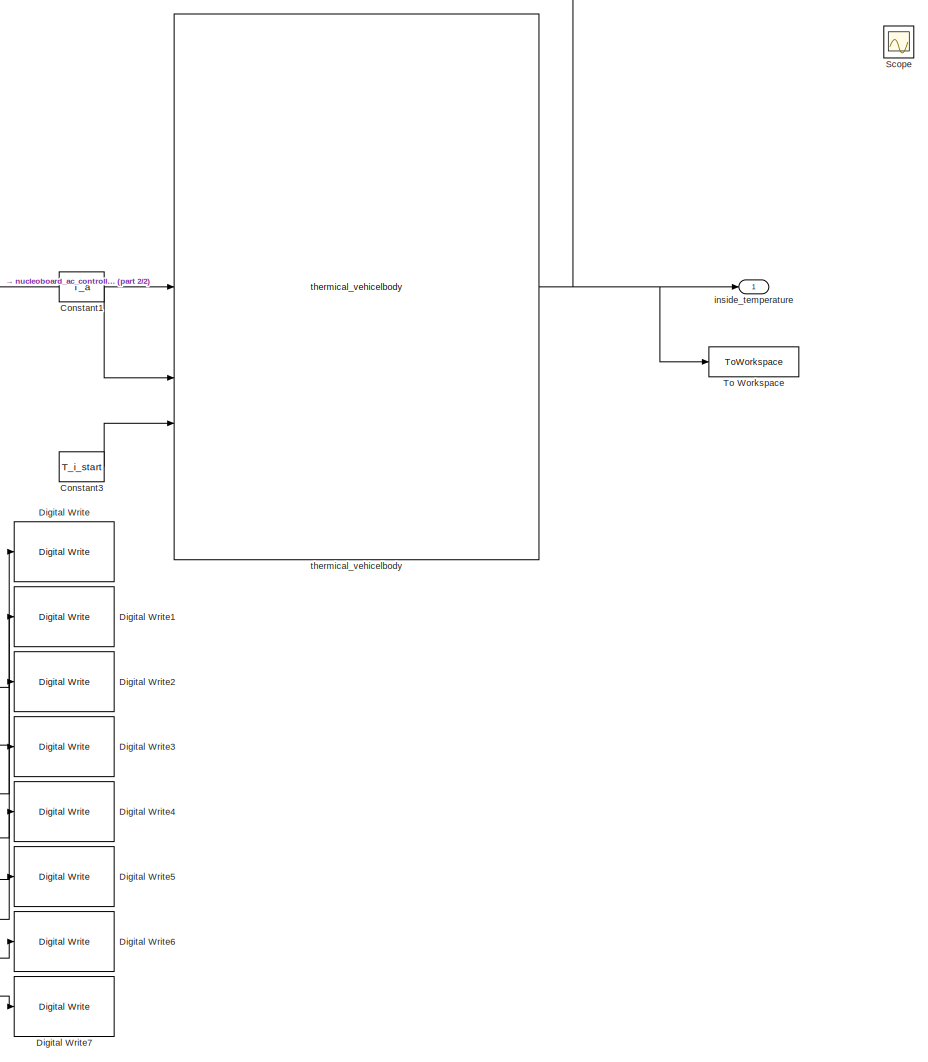
[diagram: root canvas - part 1/2, right side, full height]
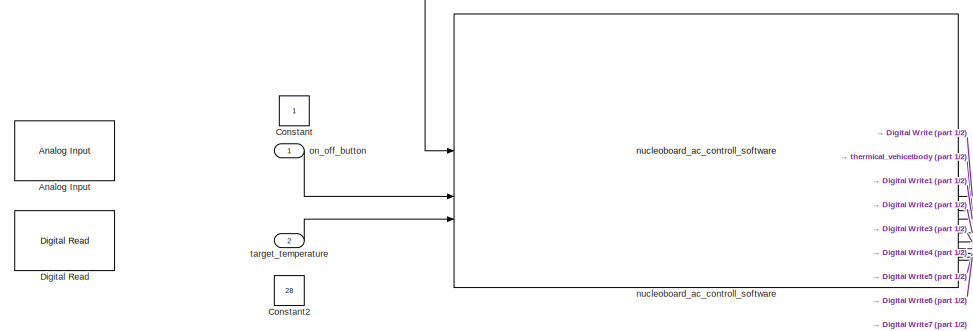
[diagram: root canvas - part 2/2, top left region]
MODEL slx_92fb39175ac7
KIND model
CONFIG AbsTol = auto
CONFIG EnableMultiTasking = off
CONFIG FixedStep = auto
CONFIG MaxStep = auto
CONFIG MinStep = auto
CONFIG RelTol = 1e-3
CONFIG SampleTimeConstraint = Unconstrained
CONFIG SolverName = ode45
CONFIG StartTime = 0.0
CONFIG StopTime = 40000
BLOCK [Reference] Analog Input  REF=mbedblockslib/Analog Input
  Commented = on
  LibrarySourceBlock = stmnucleorootlib/Common/Analog Input
  SourceBlock = mbedblockslib/Analog Input
  SourceType = mbed.AnalogInput
BLOCK [Constant] Constant
  Commented = on
  OutDataTypeStr = boolean
BLOCK [Constant] Constant1
  Value = T_a
BLOCK [Constant] Constant2
  Commented = on
  OutDataTypeStr = uint16
  Value = 28
BLOCK [Constant] Constant3
  Value = T_i_start
BLOCK [Reference] Digital Read  REF=mbedblockslib/Digital Read
  Commented = on
  LibrarySourceBlock = stmnucleorootlib/Common/Digital Read
  SourceBlock = mbedblockslib/Digital Read
  SourceType = mbed.DigitalRead
BLOCK [Reference] Digital Write  REF=mbedblockslib/Digital Write
  LibrarySourceBlock = stmnucleorootlib/Common/Digital Write
  SourceBlock = mbedblockslib/Digital Write
  SourceType = mbed.DigitalWrite
BLOCK [Reference] Digital Write1  REF=mbedblockslib/Digital Write
  LibrarySourceBlock = stmnucleorootlib/Common/Digital Write
  SourceBlock = mbedblockslib/Digital Write
  SourceType = mbed.DigitalWrite
BLOCK [Reference] Digital Write2  REF=mbedblockslib/Digital Write
  LibrarySourceBlock = stmnucleorootlib/Common/Digital Write
  SourceBlock = mbedblockslib/Digital Write
  SourceType = mbed.DigitalWrite
BLOCK [Reference] Digital Write3  REF=mbedblockslib/Digital Write
  LibrarySourceBlock = stmnucleorootlib/Common/Digital Write
  SourceBlock = mbedblockslib/Digital Write
  SourceType = mbed.DigitalWrite
BLOCK [Reference] Digital Write4  REF=mbedblockslib/Digital Write
  LibrarySourceBlock = stmnucleorootlib/Common/Digital Write
  SourceBlock = mbedblockslib/Digital Write
  SourceType = mbed.DigitalWrite
BLOCK [Reference] Digital Write5  REF=mbedblockslib/Digital Write
  LibrarySourceBlock = stmnucleorootlib/Common/Digital Write
  SourceBlock = mbedblockslib/Digital Write
  SourceType = mbed.DigitalWrite
BLOCK [Reference] Digital Write6  REF=mbedblockslib/Digital Write
  LibrarySourceBlock = stmnucleorootlib/Common/Digital Write
  SourceBlock = mbedblockslib/Digital Write
  SourceType = mbed.DigitalWrite
BLOCK [Reference] Digital Write7  REF=mbedblockslib/Digital Write
  LibrarySourceBlock = stmnucleorootlib/Common/Digital Write
  SourceBlock = mbedblockslib/Digital Write
  SourceType = mbed.DigitalWrite
BLOCK [Scope] Scope
  Commented = on
  Floating = off
  NumInputPorts = 1
  ScopeSpecificationString = Simulink.scopes.TimeScopeBlockCfg('CurrentConfiguration', extmgr.ConfigurationSet(extmgr.Configuration('Core','General UI',true),extmgr.Configuration('Core','Source UI',true),extmgr.Configuration('Sources','WiredSimulink',true),extmgr.Configuration('Visuals','Time Domain',true,'SerializedDisplays',{struct('MinYLimReal','-1.80843','MaxYLimReal','16.8604','YLabelReal','','MinYLimMag','0.00000','MaxY...<+1397ch>
BLOCK [ToWorkspace] To Workspace
  FixptAsFi = on
  MaxDataPoints = inf
  SampleTime = -1
  SaveFormat = Timeseries
  VariableName = integration_sim
BLOCK [Outport] inside_temperature
BLOCK [Reference] nucleoboard_ac_controll_software  REF=nucleoboard_ac_controll_software/nucleoboard_ac_controll_software  (lib defined in slx_ec3bdb6c270a)
  SourceBlock = nucleoboard_ac_controll_software/nucleoboard_ac_controll_software
  SourceType = SubSystem
BLOCK [Inport] on_off_button
  OutDataTypeStr = boolean
BLOCK [Inport] target_temperature
  Port = 2
BLOCK [Reference] thermical_vehicelbody  REF=thermical_vehicelbody/thermical_vehicelbody  (lib defined in slx_e5d466674b51)
  SourceBlock = thermical_vehicelbody/thermical_vehicelbody
  SourceType = SubSystem
LINE Constant1:1 -> thermical_vehicelbody:2
LINE Constant3:1 -> thermical_vehicelbody:3
LINE nucleoboard_ac_controll_software:1 -> thermical_vehicelbody:1
LINE nucleoboard_ac_controll_software:2 -> Digital Write:1
LINE nucleoboard_ac_controll_software:3 -> Digital Write1:1
LINE nucleoboard_ac_controll_software:4 -> Digital Write2:1
LINE nucleoboard_ac_controll_software:5 -> Digital Write3:1
LINE nucleoboard_ac_controll_software:6 -> Digital Write4:1
LINE nucleoboard_ac_controll_software:7 -> Digital Write5:1
LINE nucleoboard_ac_controll_software:8 -> Digital Write6:1
LINE nucleoboard_ac_controll_software:9 -> Digital Write7:1
LINE on_off_button:1 -> nucleoboard_ac_controll_software:2
LINE target_temperature:1 -> nucleoboard_ac_controll_software:3
NET thermical_vehicelbody:1 -> To Workspace:1, inside_temperature:1, nucleoboard_ac_controll_software:1
note: NET lines group one-source signal fan-out (src -> all destinations, sorted); 1:1 wires keep LINE
